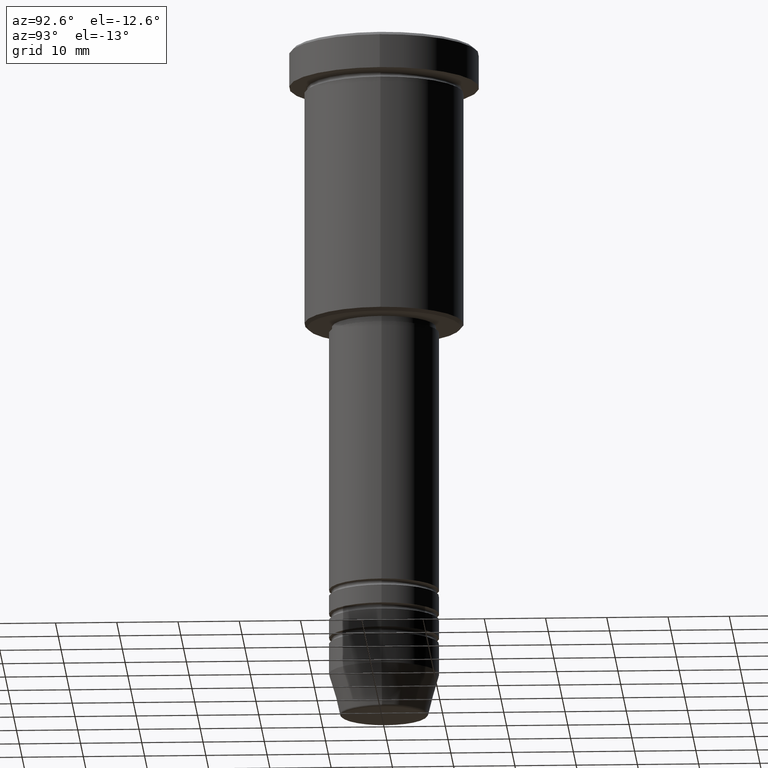
[diagram: clean part render]
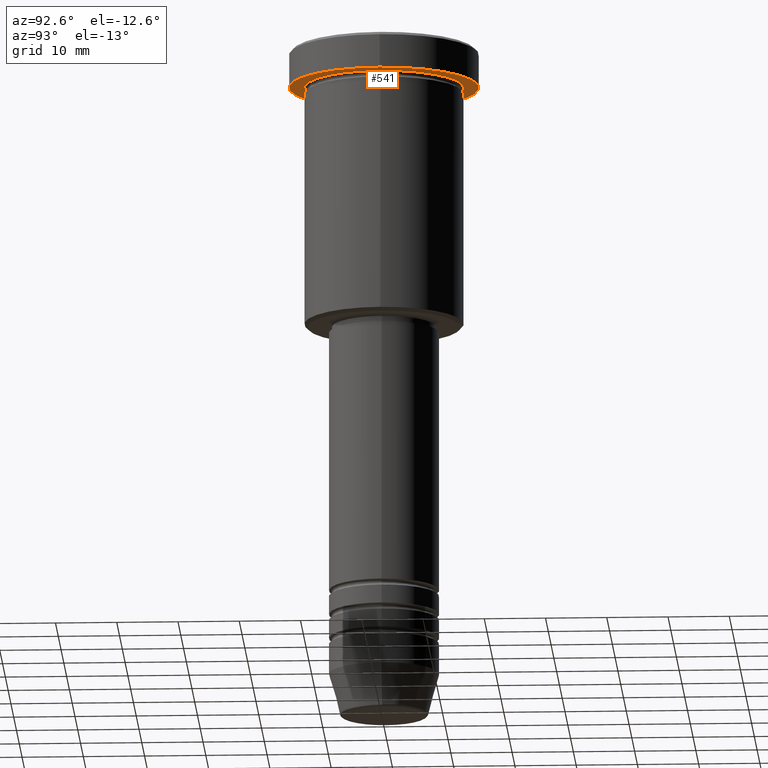
[diagram: same view with one face highlighted and labeled with its STEP entity id]
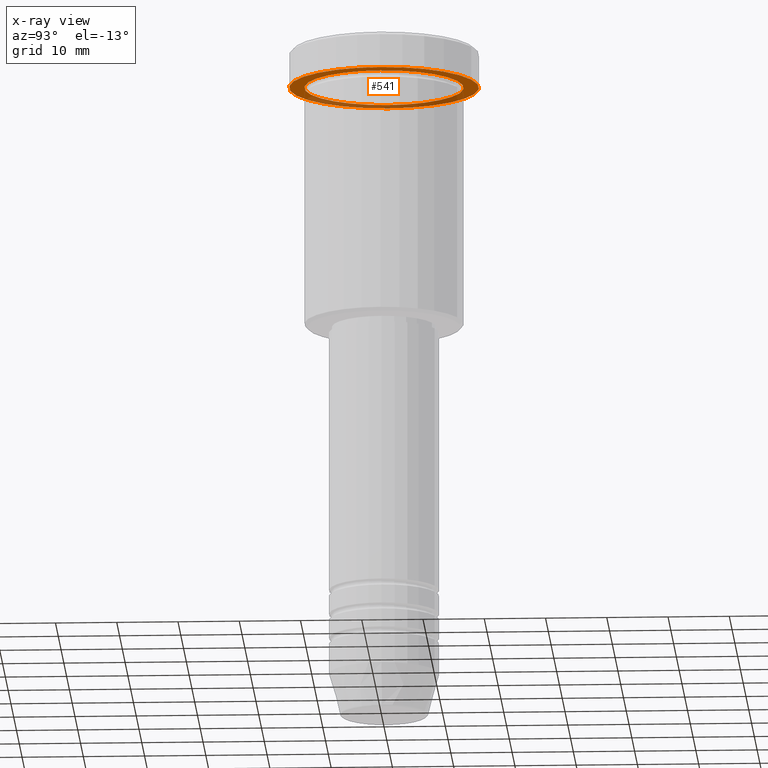
[diagram: x-ray of the same camera — body ghosted, the highlighted face saturated]
A machine part, auxiliary view. The second image highlights one B-rep face of the part: STEP entity #541.
The next image is the same camera in x-ray: the body ghosted, the highlighted face saturated — about 32% of this face is hidden behind the body in this view.
In plain terms, the highlighted planar face has unit normal (0, 0, -1).
Its self-contained STEP definition (entity closure, byte-faithful):
#7 = DIRECTION ( 'NONE',  ( -1.000000000000000000, 0.000000000000000000, -0.000000000000000000 ) ) ;
#38 = EDGE_LOOP ( 'NONE', ( #739, #1110 ) ) ;
#103 = CARTESIAN_POINT ( 'NONE',  ( 0.000000000000000000, 0.000000000000000000, -5.999999999999995559 ) ) ;
#105 = CARTESIAN_POINT ( 'NONE',  ( -13.00000000000000000, 0.000000000000000000, -5.999999999999994671 ) ) ;
#161 = CARTESIAN_POINT ( 'NONE',  ( 15.50000000000000000, 0.000000000000000000, -5.999999999999995559 ) ) ;
#180 = AXIS2_PLACEMENT_3D ( 'NONE', #713, #260, #250 ) ;
#187 = VERTEX_POINT ( 'NONE', #161 ) ;
#189 = EDGE_CURVE ( 'NONE', #711, #1028, #1056, .T. ) ;
#195 = EDGE_CURVE ( 'NONE', #187, #872, #342, .T. ) ;
#196 = PLANE ( 'NONE',  #995 ) ;
#250 = DIRECTION ( 'NONE',  ( -1.000000000000000000, 0.000000000000000000, 0.000000000000000000 ) ) ;
#260 = DIRECTION ( 'NONE',  ( -0.000000000000000000, -0.000000000000000000, 1.000000000000000000 ) ) ;
#266 = CARTESIAN_POINT ( 'NONE',  ( 0.000000000000000000, 0.000000000000000000, -5.999999999999995559 ) ) ;
#342 = CIRCLE ( 'NONE', #992, 15.50000000000000000 ) ;
#414 = CARTESIAN_POINT ( 'NONE',  ( 0.000000000000000000, 0.000000000000000000, -5.999999999999995559 ) ) ;
#457 = CIRCLE ( 'NONE', #753, 13.00000000000000000 ) ;
#467 = EDGE_LOOP ( 'NONE', ( #867, #1051 ) ) ;
#515 = CIRCLE ( 'NONE', #1180, 15.50000000000000000 ) ;
#541 = ADVANCED_FACE ( 'NONE', ( #556, #653 ), #196, .T. ) ;
#556 = FACE_BOUND ( 'NONE', #467, .T. ) ;
#561 = EDGE_CURVE ( 'NONE', #1028, #711, #457, .T. ) ;
#562 = DIRECTION ( 'NONE',  ( 0.000000000000000000, 0.000000000000000000, -1.000000000000000000 ) ) ;
#578 = DIRECTION ( 'NONE',  ( 1.000000000000000000, 0.000000000000000000, 0.000000000000000000 ) ) ;
#610 = DIRECTION ( 'NONE',  ( -0.000000000000000000, -0.000000000000000000, 1.000000000000000000 ) ) ;
#615 = DIRECTION ( 'NONE',  ( 1.000000000000000000, 0.000000000000000000, 0.000000000000000000 ) ) ;
#631 = DIRECTION ( 'NONE',  ( -0.000000000000000000, -0.000000000000000000, 1.000000000000000000 ) ) ;
#644 = CARTESIAN_POINT ( 'NONE',  ( 0.000000000000000000, 15.50000000000000000, -5.999999999999995559 ) ) ;
#653 = FACE_OUTER_BOUND ( 'NONE', #38, .T. ) ;
#711 = VERTEX_POINT ( 'NONE', #105 ) ;
#713 = CARTESIAN_POINT ( 'NONE',  ( 0.000000000000000000, 0.000000000000000000, -5.999999999999995559 ) ) ;
#738 = DIRECTION ( 'NONE',  ( -0.000000000000000000, -0.000000000000000000, 1.000000000000000000 ) ) ;
#739 = ORIENTED_EDGE ( 'NONE', *, *, #195, .F. ) ;
#753 = AXIS2_PLACEMENT_3D ( 'NONE', #103, #738, #1001 ) ;
#845 = CARTESIAN_POINT ( 'NONE',  ( 13.00000000000000000, 1.592040838891559095E-15, -5.999999999999994671 ) ) ;
#867 = ORIENTED_EDGE ( 'NONE', *, *, #189, .T. ) ;
#872 = VERTEX_POINT ( 'NONE', #899 ) ;
#899 = CARTESIAN_POINT ( 'NONE',  ( -15.50000000000000000, 1.898202538678397557E-15, -5.999999999999995559 ) ) ;
#992 = AXIS2_PLACEMENT_3D ( 'NONE', #266, #631, #615 ) ;
#995 = AXIS2_PLACEMENT_3D ( 'NONE', #644, #562, #7 ) ;
#1001 = DIRECTION ( 'NONE',  ( -1.000000000000000000, 0.000000000000000000, 0.000000000000000000 ) ) ;
#1028 = VERTEX_POINT ( 'NONE', #845 ) ;
#1044 = EDGE_CURVE ( 'NONE', #872, #187, #515, .T. ) ;
#1051 = ORIENTED_EDGE ( 'NONE', *, *, #561, .T. ) ;
#1056 = CIRCLE ( 'NONE', #180, 13.00000000000000000 ) ;
#1110 = ORIENTED_EDGE ( 'NONE', *, *, #1044, .F. ) ;
#1180 = AXIS2_PLACEMENT_3D ( 'NONE', #414, #610, #578 ) ;